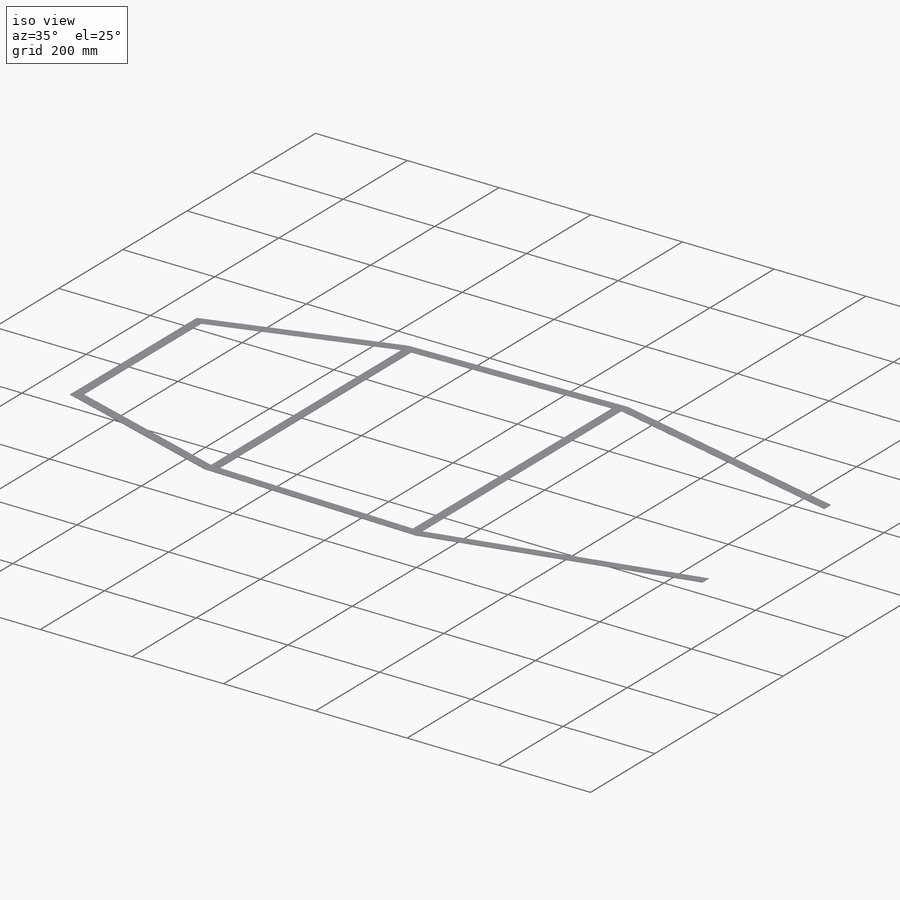
[diagram: iso view]
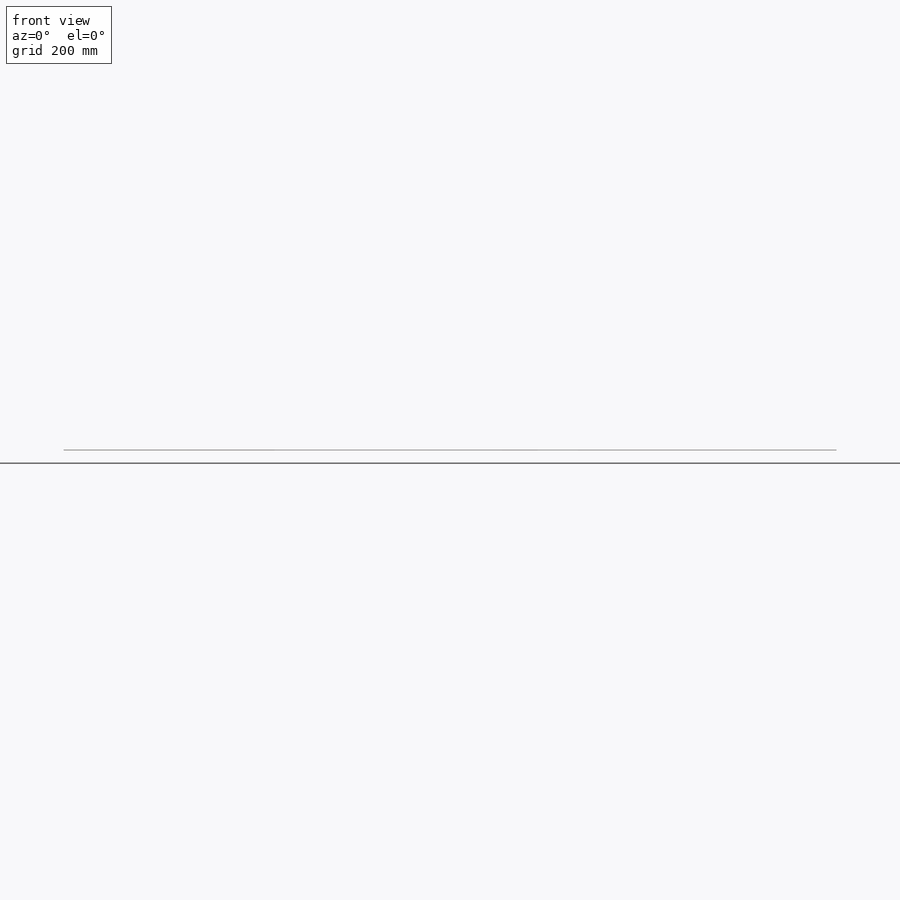
[diagram: front view]
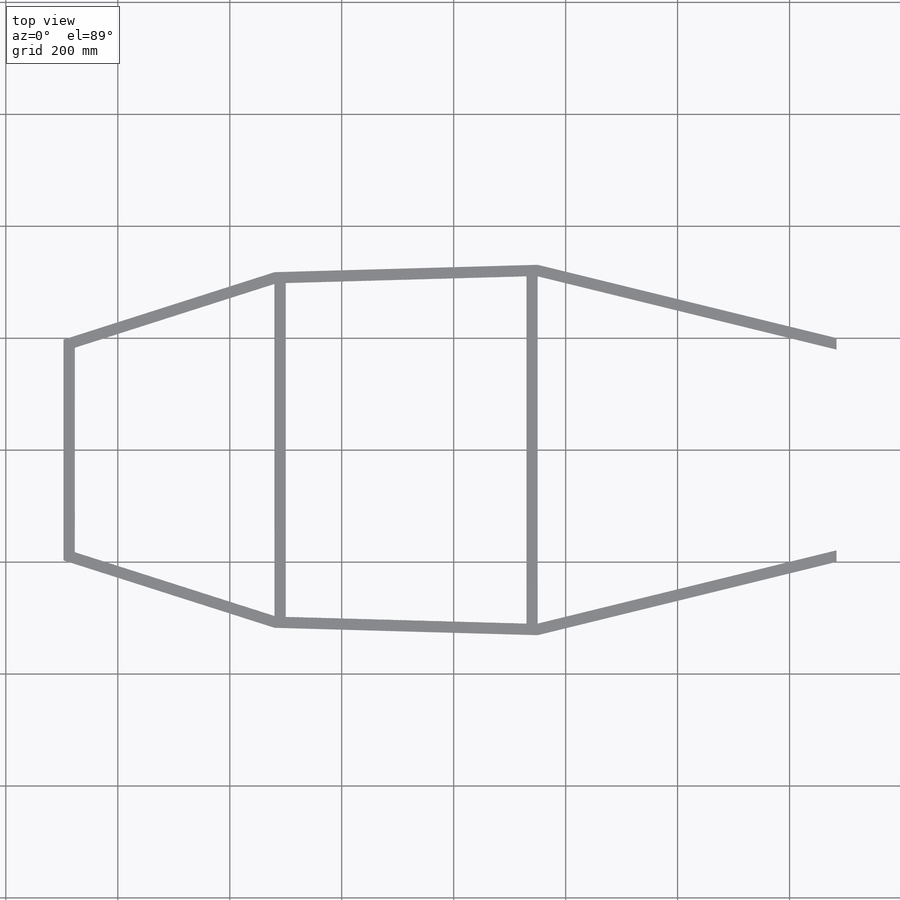
[diagram: top view]
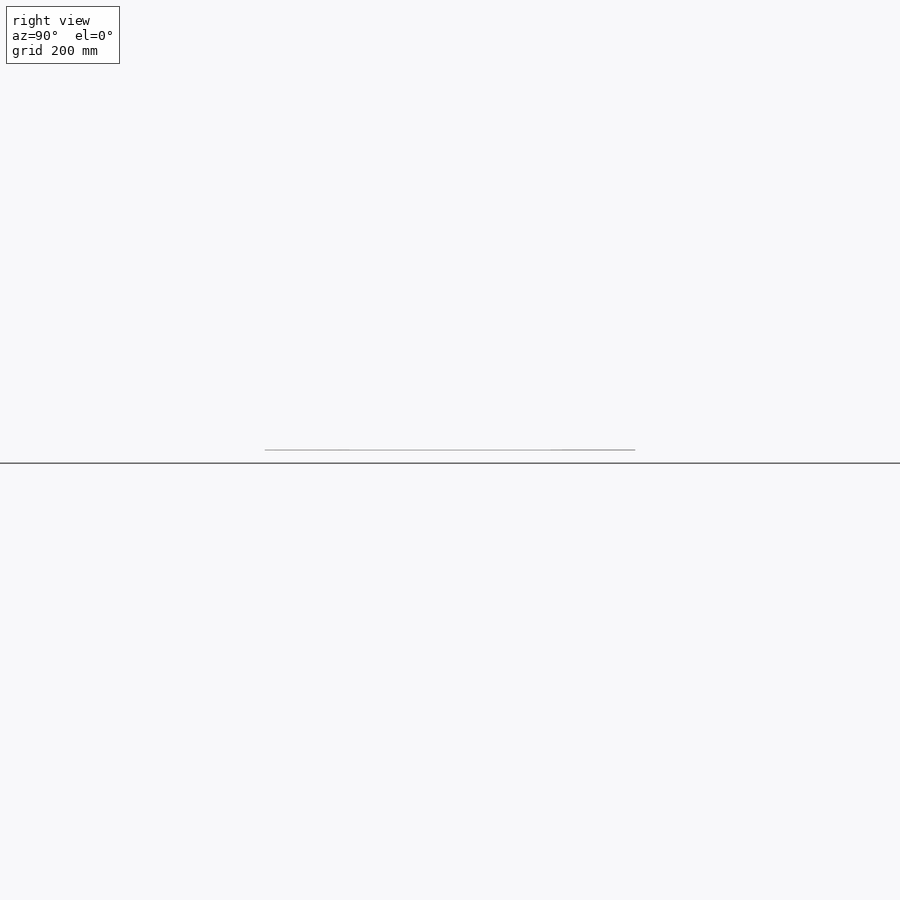
[diagram: right view]
SOLIDWORKS PART (.sldprt)
format: sldprt  version: not decoded by parser v0  size: 2,946,560 bytes
history: native  units: mm
features: sketch x44, material x1, plane x1, extrude x1 (+11 scaffold rows collapsed)
feature tree (58):
  scaffold x11  (default folders/planes/origin — collapsed)
  material  "Plain Carbon Steel"
  plane  "Plane1"  Offset=12.7mm
  sketch  "Sketch1"  dims[c1.D3=20.0mm c1.D4=~184.310848mm c2.D3=5.0mm c2.D5=30.0mm c2.D1=20.0mm c2.D2=20.0mm c3.D1=5.0mm c3.D2=30.0mm c3.D3=3.0mm c3.D4=30.0mm c3.D5=28.0mm c3.D6=5.0mm c3.D7=5.0mm c3.D8=30.0mm c4.D7=5.0mm]
  extrude  "Boss-Extrude1"  Depth=0mm NLT_HIDE=0mm NLT_HIDE_TO_CAMERA=0mm NLT_HIDE_TO_REFLECTIONS_AND_REFRACTIONS=0mm NLT_HIDE_TO_GI=0mm NLT_EXCLUDE_FROM_ZCLIP_PLANES=0mm NLT_IS_MULTI_MATERIAL_BODY=0mm NLT_MAT_ID=0mm
  sketch  "NLT_1"  dims[NLT_MAT_ID=0.0mm NLT_HIDE=0.0mm NLT_HIDE_TO_CAMERA=0.0mm NLT_HIDE_TO_REFLECTIONS_AND_REFRACTIONS=0.0mm NLT_HIDE_TO_GI=0.0mm NLT_EXCLUDE_FROM_ZCLIP_PLANES=0.0mm]
  sketch  "NLT_4"  dims[NLT_MAT_ID=0.0mm NLT_HIDE=0.0mm NLT_HIDE_TO_CAMERA=0.0mm NLT_HIDE_TO_REFLECTIONS_AND_REFRACTIONS=0.0mm NLT_HIDE_TO_GI=0.0mm NLT_EXCLUDE_FROM_ZCLIP_PLANES=0.0mm NLT_IS_MULTI_MATERIAL_BODY=0.0mm]
  sketch  "NLT_5"  dims[NLT_MAT_ID=0.0mm NLT_HIDE=0.0mm NLT_HIDE_TO_CAMERA=0.0mm NLT_HIDE_TO_REFLECTIONS_AND_REFRACTIONS=0.0mm NLT_HIDE_TO_GI=0.0mm NLT_EXCLUDE_FROM_ZCLIP_PLANES=0.0mm NLT_IS_MULTI_MATERIAL_BODY=0.0mm]
  sketch  "NLT_6"  dims[NLT_MAT_ID=0.0mm NLT_HIDE=0.0mm NLT_HIDE_TO_CAMERA=0.0mm NLT_HIDE_TO_REFLECTIONS_AND_REFRACTIONS=0.0mm NLT_HIDE_TO_GI=0.0mm NLT_EXCLUDE_FROM_ZCLIP_PLANES=0.0mm NLT_IS_MULTI_MATERIAL_BODY=0.0mm]
  sketch  "NLT_7"  dims[NLT_MAT_ID=0.0mm NLT_HIDE=0.0mm NLT_HIDE_TO_CAMERA=0.0mm NLT_HIDE_TO_REFLECTIONS_AND_REFRACTIONS=0.0mm NLT_HIDE_TO_GI=0.0mm NLT_EXCLUDE_FROM_ZCLIP_PLANES=0.0mm NLT_IS_MULTI_MATERIAL_BODY=0.0mm]
  sketch  "NLT_8"  dims[NLT_MAT_ID=0.0mm NLT_HIDE=0.0mm NLT_HIDE_TO_CAMERA=0.0mm NLT_HIDE_TO_REFLECTIONS_AND_REFRACTIONS=0.0mm NLT_HIDE_TO_GI=0.0mm NLT_EXCLUDE_FROM_ZCLIP_PLANES=0.0mm NLT_IS_MULTI_MATERIAL_BODY=0.0mm]
  sketch  "NLT_9"  dims[NLT_MAT_ID=0.0mm NLT_HIDE=0.0mm NLT_HIDE_TO_CAMERA=0.0mm NLT_HIDE_TO_REFLECTIONS_AND_REFRACTIONS=0.0mm NLT_HIDE_TO_GI=0.0mm NLT_EXCLUDE_FROM_ZCLIP_PLANES=0.0mm NLT_IS_MULTI_MATERIAL_BODY=0.0mm]
  sketch  "NLT_10"  dims[NLT_MAT_ID=0.0mm NLT_HIDE=0.0mm NLT_HIDE_TO_CAMERA=0.0mm NLT_HIDE_TO_REFLECTIONS_AND_REFRACTIONS=0.0mm NLT_HIDE_TO_GI=0.0mm NLT_EXCLUDE_FROM_ZCLIP_PLANES=0.0mm NLT_IS_MULTI_MATERIAL_BODY=0.0mm]
  sketch  "NLT_11"  dims[NLT_MAT_ID=0.0mm NLT_HIDE=0.0mm NLT_HIDE_TO_CAMERA=0.0mm NLT_HIDE_TO_REFLECTIONS_AND_REFRACTIONS=0.0mm NLT_HIDE_TO_GI=0.0mm NLT_EXCLUDE_FROM_ZCLIP_PLANES=0.0mm NLT_IS_MULTI_MATERIAL_BODY=0.0mm]
  sketch  "NLT_12"  dims[NLT_MAT_ID=0.0mm NLT_HIDE=0.0mm NLT_HIDE_TO_CAMERA=0.0mm NLT_HIDE_TO_REFLECTIONS_AND_REFRACTIONS=0.0mm NLT_HIDE_TO_GI=0.0mm NLT_EXCLUDE_FROM_ZCLIP_PLANES=0.0mm NLT_IS_MULTI_MATERIAL_BODY=0.0mm]
  sketch  "NLT_13"  dims[NLT_MAT_ID=0.0mm NLT_HIDE=0.0mm NLT_HIDE_TO_CAMERA=0.0mm NLT_HIDE_TO_REFLECTIONS_AND_REFRACTIONS=0.0mm NLT_HIDE_TO_GI=0.0mm NLT_EXCLUDE_FROM_ZCLIP_PLANES=0.0mm NLT_IS_MULTI_MATERIAL_BODY=0.0mm]
  sketch  "NLT_14"  dims[NLT_MAT_ID=0.0mm NLT_HIDE=0.0mm NLT_HIDE_TO_CAMERA=0.0mm NLT_HIDE_TO_REFLECTIONS_AND_REFRACTIONS=0.0mm NLT_HIDE_TO_GI=0.0mm NLT_EXCLUDE_FROM_ZCLIP_PLANES=0.0mm NLT_IS_MULTI_MATERIAL_BODY=0.0mm]
  sketch  "NLT_15"  dims[NLT_MAT_ID=0.0mm NLT_HIDE=0.0mm NLT_HIDE_TO_CAMERA=0.0mm NLT_HIDE_TO_REFLECTIONS_AND_REFRACTIONS=0.0mm NLT_HIDE_TO_GI=0.0mm NLT_EXCLUDE_FROM_ZCLIP_PLANES=0.0mm NLT_IS_MULTI_MATERIAL_BODY=0.0mm]
  sketch  "NLT_16"  dims[NLT_MAT_ID=0.0mm NLT_HIDE=0.0mm NLT_HIDE_TO_CAMERA=0.0mm NLT_HIDE_TO_REFLECTIONS_AND_REFRACTIONS=0.0mm NLT_HIDE_TO_GI=0.0mm NLT_EXCLUDE_FROM_ZCLIP_PLANES=0.0mm NLT_IS_MULTI_MATERIAL_BODY=0.0mm]
  sketch  "NLT_17"  dims[NLT_MAT_ID=0.0mm NLT_HIDE=0.0mm NLT_HIDE_TO_CAMERA=0.0mm NLT_HIDE_TO_REFLECTIONS_AND_REFRACTIONS=0.0mm NLT_HIDE_TO_GI=0.0mm NLT_EXCLUDE_FROM_ZCLIP_PLANES=0.0mm NLT_IS_MULTI_MATERIAL_BODY=0.0mm]
  sketch  "NLT_18"  dims[NLT_MAT_ID=0.0mm NLT_HIDE=0.0mm NLT_HIDE_TO_CAMERA=0.0mm NLT_HIDE_TO_REFLECTIONS_AND_REFRACTIONS=0.0mm NLT_HIDE_TO_GI=0.0mm NLT_EXCLUDE_FROM_ZCLIP_PLANES=0.0mm NLT_IS_MULTI_MATERIAL_BODY=0.0mm]
  sketch  "NLT_19"  dims[NLT_MAT_ID=0.0mm NLT_HIDE=0.0mm NLT_HIDE_TO_CAMERA=0.0mm NLT_HIDE_TO_REFLECTIONS_AND_REFRACTIONS=0.0mm NLT_HIDE_TO_GI=0.0mm NLT_EXCLUDE_FROM_ZCLIP_PLANES=0.0mm NLT_IS_MULTI_MATERIAL_BODY=0.0mm]
  sketch  "NLT_20"  dims[NLT_MAT_ID=0.0mm NLT_HIDE=0.0mm NLT_HIDE_TO_CAMERA=0.0mm NLT_HIDE_TO_REFLECTIONS_AND_REFRACTIONS=0.0mm NLT_HIDE_TO_GI=0.0mm NLT_EXCLUDE_FROM_ZCLIP_PLANES=0.0mm NLT_IS_MULTI_MATERIAL_BODY=0.0mm]
  sketch  "NLT_21"  dims[NLT_MAT_ID=0.0mm NLT_HIDE=0.0mm NLT_HIDE_TO_CAMERA=0.0mm NLT_HIDE_TO_REFLECTIONS_AND_REFRACTIONS=0.0mm NLT_HIDE_TO_GI=0.0mm NLT_EXCLUDE_FROM_ZCLIP_PLANES=0.0mm NLT_IS_MULTI_MATERIAL_BODY=0.0mm]
  sketch  "NLT_22"  dims[NLT_MAT_ID=0.0mm NLT_HIDE=0.0mm NLT_HIDE_TO_CAMERA=0.0mm NLT_HIDE_TO_REFLECTIONS_AND_REFRACTIONS=0.0mm NLT_HIDE_TO_GI=0.0mm NLT_EXCLUDE_FROM_ZCLIP_PLANES=0.0mm NLT_IS_MULTI_MATERIAL_BODY=0.0mm]
  sketch  "NLT_23"  dims[NLT_MAT_ID=0.0mm NLT_HIDE=0.0mm NLT_HIDE_TO_CAMERA=0.0mm NLT_HIDE_TO_REFLECTIONS_AND_REFRACTIONS=0.0mm NLT_HIDE_TO_GI=0.0mm NLT_EXCLUDE_FROM_ZCLIP_PLANES=0.0mm NLT_IS_MULTI_MATERIAL_BODY=0.0mm]
  sketch  "NLT_24"  dims[NLT_MAT_ID=0.0mm NLT_HIDE=0.0mm NLT_HIDE_TO_CAMERA=0.0mm NLT_HIDE_TO_REFLECTIONS_AND_REFRACTIONS=0.0mm NLT_HIDE_TO_GI=0.0mm NLT_EXCLUDE_FROM_ZCLIP_PLANES=0.0mm NLT_IS_MULTI_MATERIAL_BODY=0.0mm]
  sketch  "NLT_25"  dims[NLT_MAT_ID=0.0mm NLT_HIDE=0.0mm NLT_HIDE_TO_CAMERA=0.0mm NLT_HIDE_TO_REFLECTIONS_AND_REFRACTIONS=0.0mm NLT_HIDE_TO_GI=0.0mm NLT_EXCLUDE_FROM_ZCLIP_PLANES=0.0mm NLT_IS_MULTI_MATERIAL_BODY=0.0mm]
  sketch  "NLT_26"  dims[NLT_MAT_ID=0.0mm NLT_HIDE=0.0mm NLT_HIDE_TO_CAMERA=0.0mm NLT_HIDE_TO_REFLECTIONS_AND_REFRACTIONS=0.0mm NLT_HIDE_TO_GI=0.0mm NLT_EXCLUDE_FROM_ZCLIP_PLANES=0.0mm NLT_IS_MULTI_MATERIAL_BODY=0.0mm]
  sketch  "NLT_27"  dims[NLT_MAT_ID=0.0mm NLT_HIDE=0.0mm NLT_HIDE_TO_CAMERA=0.0mm NLT_HIDE_TO_REFLECTIONS_AND_REFRACTIONS=0.0mm NLT_HIDE_TO_GI=0.0mm NLT_EXCLUDE_FROM_ZCLIP_PLANES=0.0mm NLT_IS_MULTI_MATERIAL_BODY=0.0mm]
  sketch  "NLT_28"  dims[NLT_MAT_ID=0.0mm NLT_HIDE=0.0mm NLT_HIDE_TO_CAMERA=0.0mm NLT_HIDE_TO_REFLECTIONS_AND_REFRACTIONS=0.0mm NLT_HIDE_TO_GI=0.0mm NLT_EXCLUDE_FROM_ZCLIP_PLANES=0.0mm NLT_IS_MULTI_MATERIAL_BODY=0.0mm]
  sketch  "NLT_29"  dims[NLT_MAT_ID=0.0mm NLT_HIDE=0.0mm NLT_HIDE_TO_CAMERA=0.0mm NLT_HIDE_TO_REFLECTIONS_AND_REFRACTIONS=0.0mm NLT_HIDE_TO_GI=0.0mm NLT_EXCLUDE_FROM_ZCLIP_PLANES=0.0mm NLT_IS_MULTI_MATERIAL_BODY=0.0mm]
  sketch  "NLT_30"  dims[NLT_MAT_ID=0.0mm NLT_HIDE=0.0mm NLT_HIDE_TO_CAMERA=0.0mm NLT_HIDE_TO_REFLECTIONS_AND_REFRACTIONS=0.0mm NLT_HIDE_TO_GI=0.0mm NLT_EXCLUDE_FROM_ZCLIP_PLANES=0.0mm NLT_IS_MULTI_MATERIAL_BODY=0.0mm]
  sketch  "NLT_31"  dims[NLT_MAT_ID=0.0mm NLT_HIDE=0.0mm NLT_HIDE_TO_CAMERA=0.0mm NLT_HIDE_TO_REFLECTIONS_AND_REFRACTIONS=0.0mm NLT_HIDE_TO_GI=0.0mm NLT_EXCLUDE_FROM_ZCLIP_PLANES=0.0mm NLT_IS_MULTI_MATERIAL_BODY=0.0mm]
  sketch  "NLT_32"  dims[NLT_MAT_ID=0.0mm NLT_HIDE=0.0mm NLT_HIDE_TO_CAMERA=0.0mm NLT_HIDE_TO_REFLECTIONS_AND_REFRACTIONS=0.0mm NLT_HIDE_TO_GI=0.0mm NLT_EXCLUDE_FROM_ZCLIP_PLANES=0.0mm NLT_IS_MULTI_MATERIAL_BODY=0.0mm]
  sketch  "NLT_33"  dims[NLT_MAT_ID=0.0mm NLT_HIDE=0.0mm NLT_HIDE_TO_CAMERA=0.0mm NLT_HIDE_TO_REFLECTIONS_AND_REFRACTIONS=0.0mm NLT_HIDE_TO_GI=0.0mm NLT_EXCLUDE_FROM_ZCLIP_PLANES=0.0mm NLT_IS_MULTI_MATERIAL_BODY=0.0mm]
  sketch  "NLT_34"  dims[NLT_MAT_ID=0.0mm NLT_HIDE=0.0mm NLT_HIDE_TO_CAMERA=0.0mm NLT_HIDE_TO_REFLECTIONS_AND_REFRACTIONS=0.0mm NLT_HIDE_TO_GI=0.0mm NLT_EXCLUDE_FROM_ZCLIP_PLANES=0.0mm NLT_IS_MULTI_MATERIAL_BODY=0.0mm]
  sketch  "NLT_35"  dims[NLT_MAT_ID=0.0mm NLT_HIDE=0.0mm NLT_HIDE_TO_CAMERA=0.0mm NLT_HIDE_TO_REFLECTIONS_AND_REFRACTIONS=0.0mm NLT_HIDE_TO_GI=0.0mm NLT_EXCLUDE_FROM_ZCLIP_PLANES=0.0mm NLT_IS_MULTI_MATERIAL_BODY=0.0mm]
  sketch  "NLT_36"  dims[NLT_MAT_ID=0.0mm NLT_HIDE=0.0mm NLT_HIDE_TO_CAMERA=0.0mm NLT_HIDE_TO_REFLECTIONS_AND_REFRACTIONS=0.0mm NLT_HIDE_TO_GI=0.0mm NLT_EXCLUDE_FROM_ZCLIP_PLANES=0.0mm NLT_IS_MULTI_MATERIAL_BODY=0.0mm]
  sketch  "NLT_37"  dims[NLT_MAT_ID=0.0mm NLT_HIDE=0.0mm NLT_HIDE_TO_CAMERA=0.0mm NLT_HIDE_TO_REFLECTIONS_AND_REFRACTIONS=0.0mm NLT_HIDE_TO_GI=0.0mm NLT_EXCLUDE_FROM_ZCLIP_PLANES=0.0mm NLT_IS_MULTI_MATERIAL_BODY=0.0mm]
  sketch  "NLT_38"  dims[NLT_MAT_ID=0.0mm NLT_HIDE=0.0mm NLT_HIDE_TO_CAMERA=0.0mm NLT_HIDE_TO_REFLECTIONS_AND_REFRACTIONS=0.0mm NLT_HIDE_TO_GI=0.0mm NLT_EXCLUDE_FROM_ZCLIP_PLANES=0.0mm NLT_IS_MULTI_MATERIAL_BODY=0.0mm]
  sketch  "NLT_39"  dims[NLT_MAT_ID=0.0mm NLT_HIDE=0.0mm NLT_HIDE_TO_CAMERA=0.0mm NLT_HIDE_TO_REFLECTIONS_AND_REFRACTIONS=0.0mm NLT_HIDE_TO_GI=0.0mm NLT_EXCLUDE_FROM_ZCLIP_PLANES=0.0mm NLT_IS_MULTI_MATERIAL_BODY=0.0mm]
  sketch  "NLT_40"  dims[NLT_MAT_ID=0.0mm NLT_HIDE=0.0mm NLT_HIDE_TO_CAMERA=0.0mm NLT_HIDE_TO_REFLECTIONS_AND_REFRACTIONS=0.0mm NLT_HIDE_TO_GI=0.0mm NLT_EXCLUDE_FROM_ZCLIP_PLANES=0.0mm NLT_IS_MULTI_MATERIAL_BODY=0.0mm]
  sketch  "NLT_41"  dims[NLT_MAT_ID=0.0mm NLT_HIDE=0.0mm NLT_HIDE_TO_CAMERA=0.0mm NLT_HIDE_TO_REFLECTIONS_AND_REFRACTIONS=0.0mm NLT_HIDE_TO_GI=0.0mm NLT_EXCLUDE_FROM_ZCLIP_PLANES=0.0mm NLT_IS_MULTI_MATERIAL_BODY=0.0mm]
  sketch  "NLT_42"  dims[NLT_MAT_ID=0.0mm NLT_HIDE=0.0mm NLT_HIDE_TO_CAMERA=0.0mm NLT_HIDE_TO_REFLECTIONS_AND_REFRACTIONS=0.0mm NLT_HIDE_TO_GI=0.0mm NLT_EXCLUDE_FROM_ZCLIP_PLANES=0.0mm NLT_IS_MULTI_MATERIAL_BODY=0.0mm]
  sketch  "NLT_43"  dims[NLT_MAT_ID=0.0mm NLT_HIDE=0.0mm NLT_HIDE_TO_CAMERA=0.0mm NLT_HIDE_TO_REFLECTIONS_AND_REFRACTIONS=0.0mm NLT_HIDE_TO_GI=0.0mm NLT_EXCLUDE_FROM_ZCLIP_PLANES=0.0mm NLT_IS_MULTI_MATERIAL_BODY=0.0mm]
  sketch  "NLT_44"  dims[NLT_MAT_ID=0.0mm NLT_HIDE=0.0mm NLT_HIDE_TO_CAMERA=0.0mm NLT_HIDE_TO_REFLECTIONS_AND_REFRACTIONS=0.0mm NLT_HIDE_TO_GI=0.0mm NLT_EXCLUDE_FROM_ZCLIP_PLANES=0.0mm NLT_IS_MULTI_MATERIAL_BODY=0.0mm]
  sketch  "NLT_45"  dims[NLT_MAT_ID=0.0mm NLT_HIDE=0.0mm NLT_HIDE_TO_CAMERA=0.0mm NLT_HIDE_TO_REFLECTIONS_AND_REFRACTIONS=0.0mm NLT_HIDE_TO_GI=0.0mm NLT_EXCLUDE_FROM_ZCLIP_PLANES=0.0mm NLT_IS_MULTI_MATERIAL_BODY=0.0mm]
decode coverage: 45 of 45 modeling features carry decoded parameters
note: ~ marks probable driven/reference dimensions
note: suppression state not decoded; provenance and decode notes live in map.json
